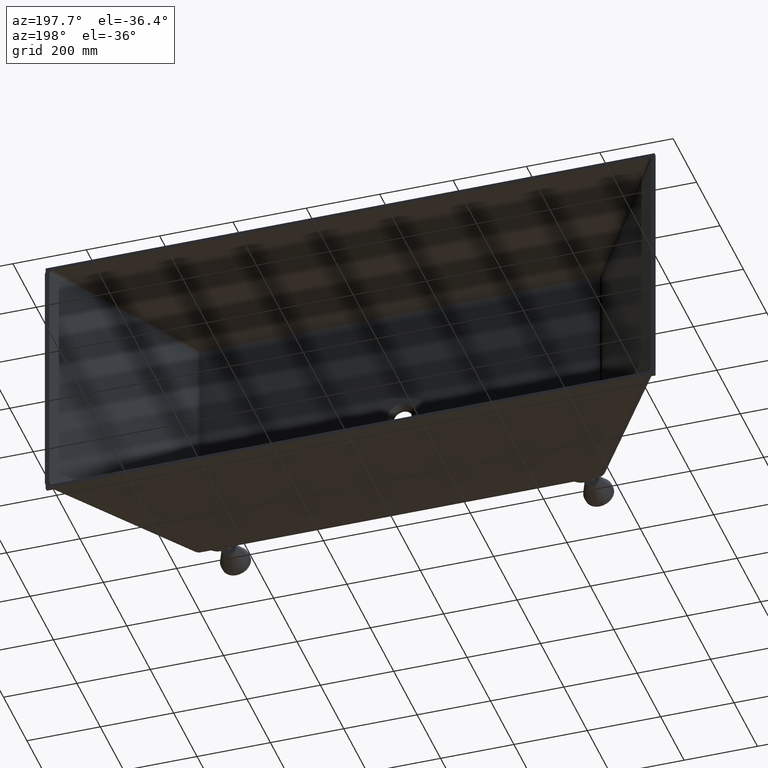
[diagram: clean part render]
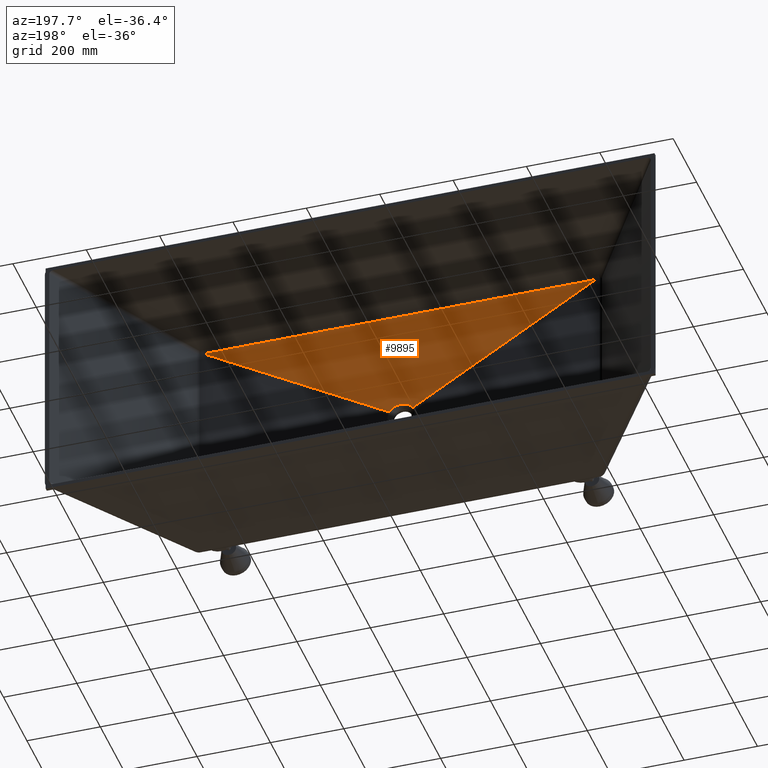
[diagram: same view with one face highlighted and labeled with its STEP entity id]
A machine part, auxiliary view. The second image highlights one B-rep face of the part: STEP entity #9895.
In plain terms, the highlighted face is a freeform B-spline surface patch.
Its self-contained STEP definition (entity closure, byte-faithful):
#6 = CARTESIAN_POINT ( 'NONE',  ( -550.0000000000000000, -423.0000000000000000, 320.0000000000000000 ) ) ;
#35 = CARTESIAN_POINT ( 'NONE',  ( -21.53126045213230100, -435.0000000000001700, 14.69394547517998700 ) ) ;
#63 = CARTESIAN_POINT ( 'NONE',  ( -504.1666666666668600, -423.0000000000000000, 320.0000000000000000 ) ) ;
#97 = CARTESIAN_POINT ( 'NONE',  ( -20.35324425944732600, -435.0000000000002300, 16.31443209533704300 ) ) ;
#150 = CARTESIAN_POINT ( 'NONE',  ( -458.3333333333336000, -423.0000000000000000, 320.0000000000000000 ) ) ;
#219 = CARTESIAN_POINT ( 'NONE',  ( -18.19023653724159900, -435.0000000000000600, 18.60696392049823800 ) ) ;
#253 = CARTESIAN_POINT ( 'NONE',  ( -389.5833333333336000, -423.0000000000000000, 319.9999999999999400 ) ) ;
#282 = VERTEX_POINT ( 'NONE', #10109 ) ;
#288 = CARTESIAN_POINT ( 'NONE',  ( -17.40376523756670600, -434.9999999999999400, 19.34752461996535900 ) ) ;
#291 = B_SPLINE_CURVE_WITH_KNOTS ( 'NONE', 3,
 ( #9550, #9423, #8990, #8873, #8839, #8793, #8758, #8723, #8652, #8612, #8572, #8141, #8099, #8026, #7989, #7954, #7915, #7821, #7330, #7296, #7219, #7151, #7045, #7020, #6992, #6508, #6429, #6357, #6270, #6239, #6204, #6140, #5635, #5600, #5565, #5503, #5472, #5436, #5377, #5312, #4809, #4747, #4711, #4621, #4540, #4509, #4145, #4072, #4035, #4002, #3914, #3879, #3845, #3811, #3776, #3743, #3358, #3320, #3286, #3253, #3192, #3160, #3130, #3069, #3003, #2975 ),
 .UNSPECIFIED., .F., .F.,
 ( 4, 2, 2, 2, 2, 2, 2, 2, 2, 2, 2, 2, 2, 2, 2, 2, 2, 2, 2, 2, 2, 2, 2, 2, 2, 2, 2, 2, 2, 2, 2, 2, 4 ),
 ( 0.0000000000000000000, 0.0007649081231403058000, 0.01798026586033315800, 0.03519562359752601000, 0.05241098133471885900, 0.08684169680910455700, 0.1212724122834902700, 0.1557031277578759800, 0.1901338432322616800, 0.2245645587066473800, 0.2589952741810330700, 0.2934259896554187700, 0.3278567051298044700, 0.3450720628669973200, 0.3622874206041901700, 0.3967181360785758700, 0.4311488515529616200, 0.5000102825017329600, 0.5688717134505043600, 0.6377331443992758600, 0.6549485021364687100, 0.6721638598736615600, 0.7065945753480472600, 0.7410252908224329600, 0.7754560062968186600, 0.8098867217712043500, 0.8443174372455900500, 0.8787481527199757500, 0.9131788681943614500, 0.9476095836687471500, 0.9820402991431328400, 0.9992556568803256900, 1.000000000000000000 ),
 .UNSPECIFIED. ) ;
#324 = CARTESIAN_POINT ( 'NONE',  ( -366.6666666666669100, -422.9999999999999400, 319.9999999999999400 ) ) ;
#355 = CARTESIAN_POINT ( 'NONE',  ( -15.70179363176896300, -435.0000000000000600, 20.75262465592824800 ) ) ;
#466 = CARTESIAN_POINT ( 'NONE',  ( -320.8333333333336600, -422.9999999999999400, 319.9999999999999400 ) ) ;
#493 = B_SPLINE_SURFACE_WITH_KNOTS ( 'NONE', 3, 1, ( 
 ( #3213, #3527 ),
 ( #3149, #3118 ),
 ( #3090, #3058 ),
 ( #3027, #2990 ),
 ( #2930, #2899 ),
 ( #2763, #2629 ),
 ( #2596, #2561 ),
 ( #2526, #2481 ),
 ( #2451, #2429 ),
 ( #2387, #2194 ),
 ( #2160, #2053 ),
 ( #1993, #1855 ),
 ( #1815, #1783 ),
 ( #1756, #1741 ),
 ( #1673, #1612 ),
 ( #1500, #1476 ),
 ( #1409, #1317 ),
 ( #1195, #1117 ),
 ( #1080, #1045 ),
 ( #1010, #1001 ),
 ( #943, #909 ),
 ( #867, #804 ),
 ( #681, #644 ),
 ( #607, #496 ),
 ( #466, #355 ),
 ( #324, #288 ),
 ( #253, #219 ),
 ( #150, #97 ),
 ( #63, #35 ),
 ( #6, #3332 ) ),
 .UNSPECIFIED., .F., .F., .F.,
 ( 4, 2, 2, 2, 2, 2, 2, 2, 2, 2, 2, 2, 2, 2, 4 ),
 ( 2, 2 ),
 ( 0.0000000000000000000, 0.1250000000000000600, 0.1875000000000000800, 0.2500000000000001100, 0.3125000000000001100, 0.3750000000000001700, 0.4375000000000001100, 0.5000000000000000000, 0.5625000000000000000, 0.6250000000000000000, 0.6875000000000001100, 0.7500000000000001100, 0.8125000000000001100, 0.8750000000000001100, 1.000000000000000000 ),
 ( 0.0000000000000000000, 1.000000000000000000 ),
 .UNSPECIFIED. ) ;
#496 = CARTESIAN_POINT ( 'NONE',  ( -14.78624980635664700, -435.0000000000000600, 21.41708314686528400 ) ) ;
#596 = CARTESIAN_POINT ( 'NONE',  ( 534.0089786336966400, -423.3620320843216400, 310.7403656354988500 ) ) ;
#607 = CARTESIAN_POINT ( 'NONE',  ( -297.9166666666669100, -422.9999999999999400, 319.9999999999999400 ) ) ;
#644 = CARTESIAN_POINT ( 'NONE',  ( -12.83600753977993000, -435.0000000000000600, 22.63982209060918600 ) ) ;
#681 = CARTESIAN_POINT ( 'NONE',  ( -252.0833333333336600, -422.9999999999999400, 319.9999999999999400 ) ) ;
#804 = CARTESIAN_POINT ( 'NONE',  ( -11.80129827629861000, -435.0000000000000000, 23.19799905050772900 ) ) ;
#847 = EDGE_CURVE ( 'NONE', #1510, #7518, #5214, .T. ) ;
#858 = VECTOR ( 'NONE', #6430, 1000.000000000000000 ) ;
#867 = CARTESIAN_POINT ( 'NONE',  ( -229.1666666666670000, -422.9999999999999400, 319.9999999999999400 ) ) ;
#909 = CARTESIAN_POINT ( 'NONE',  ( -9.631562217398775200, -435.0000000000000000, 24.17955355679468700 ) ) ;
#943 = CARTESIAN_POINT ( 'NONE',  ( -183.3333333333336300, -422.9999999999999400, 319.9999999999999400 ) ) ;
#1001 = CARTESIAN_POINT ( 'NONE',  ( -8.496569480746329000, -435.0000000000000600, 24.60282113457703800 ) ) ;
#1010 = CARTESIAN_POINT ( 'NONE',  ( -160.4166666666669400, -422.9999999999999400, 319.9999999999999400 ) ) ;
#1012 = ORIENTED_EDGE ( 'NONE', *, *, #7434, .F. ) ;
#1045 = CARTESIAN_POINT ( 'NONE',  ( -6.153758291839070100, -435.0000000000000000, 25.29074454433403900 ) ) ;
#1080 = CARTESIAN_POINT ( 'NONE',  ( -114.5833333333335700, -422.9999999999999400, 319.9999999999999400 ) ) ;
#1117 = CARTESIAN_POINT ( 'NONE',  ( -4.946021307307768600, -434.9999999999998900, 25.55530689251893500 ) ) ;
#1130 = CARTESIAN_POINT ( 'NONE',  ( 533.7607856264130500, -423.3694040181032400, 310.5517298190039800 ) ) ;
#1174 = CARTESIAN_POINT ( 'NONE',  ( -31.67528869381416700, -434.7906821366494800, 18.42822079933189300 ) ) ;
#1195 = CARTESIAN_POINT ( 'NONE',  ( -91.66666666666689900, -422.9999999999999400, 319.9999999999999400 ) ) ;
#1317 = CARTESIAN_POINT ( 'NONE',  ( -2.492132842348292200, -435.0000000000000000, 25.90996161786537800 ) ) ;
#1348 = CARTESIAN_POINT ( 'NONE',  ( 533.7607856264130500, -423.3694040181032400, 310.5517298190039800 ) ) ;
#1409 = CARTESIAN_POINT ( 'NONE',  ( -45.83333333333357000, -422.9999999999998900, 319.9999999999999400 ) ) ;
#1476 = CARTESIAN_POINT ( 'NONE',  ( -1.246099363747027900, -435.0000000000000000, 25.99999999999999600 ) ) ;
#1500 = CARTESIAN_POINT ( 'NONE',  ( -22.91666666666690900, -422.9999999999998900, 319.9999999999999400 ) ) ;
#1510 = VERTEX_POINT ( 'NONE', #1348 ) ;
#1540 = CARTESIAN_POINT ( 'NONE',  ( 534.0824365687542500, -423.3576370261505400, 310.8529072462811200 ) ) ;
#1591 = VERTEX_POINT ( 'NONE', #1174 ) ;
#1612 = CARTESIAN_POINT ( 'NONE',  ( 1.246099363747022600, -435.0000000000000000, 26.00000000000000000 ) ) ;
#1625 = VERTEX_POINT ( 'NONE', #3565 ) ;
#1673 = CARTESIAN_POINT ( 'NONE',  ( 22.91666666666638400, -422.9999999999998900, 319.9999999999999400 ) ) ;
#1687 = CARTESIAN_POINT ( 'NONE',  ( 534.0965935054943000, -423.3541531858632000, 310.9421604996377400 ) ) ;
#1737 = CARTESIAN_POINT ( 'NONE',  ( -533.7607856264130500, -423.3694040181032400, 310.5517298190039200 ) ) ;
#1741 = CARTESIAN_POINT ( 'NONE',  ( 2.492132842348286900, -435.0000000000000600, 25.90996161786537800 ) ) ;
#1756 = CARTESIAN_POINT ( 'NONE',  ( 45.83333333333301600, -422.9999999999999400, 319.9999999999999400 ) ) ;
#1770 = CARTESIAN_POINT ( 'NONE',  ( -533.8382887829374100, -423.3676410031726500, 310.5968225645631300 ) ) ;
#1783 = CARTESIAN_POINT ( 'NONE',  ( 4.946021307307760600, -435.0000000000000000, 25.55530689251893500 ) ) ;
#1815 = CARTESIAN_POINT ( 'NONE',  ( 91.66666666666630200, -422.9999999999999400, 319.9999999999999400 ) ) ;
#1855 = CARTESIAN_POINT ( 'NONE',  ( 6.153758291839063900, -435.0000000000001100, 25.29074454433402900 ) ) ;
#1993 = CARTESIAN_POINT ( 'NONE',  ( 114.5833333333329600, -422.9999999999999400, 319.9999999999999400 ) ) ;
#2022 = CARTESIAN_POINT ( 'NONE',  ( 533.9134175418050700, -423.3656696787636500, 310.6472563725386600 ) ) ;
#2053 = CARTESIAN_POINT ( 'NONE',  ( 8.496569480746323700, -435.0000000000000000, 24.60282113457703100 ) ) ;
#2160 = CARTESIAN_POINT ( 'NONE',  ( 160.4166666666662900, -422.9999999999999400, 319.9999999999999400 ) ) ;
#2187 = CARTESIAN_POINT ( 'NONE',  ( 534.0966441834889300, -423.3559228654215800, 310.8968155842244400 ) ) ;
#2194 = CARTESIAN_POINT ( 'NONE',  ( 9.631562217398768100, -435.0000000000001100, 24.17955355679468400 ) ) ;
#2195 = CARTESIAN_POINT ( 'NONE',  ( 534.0965935054943000, -423.3541531858632000, 310.9421604996377400 ) ) ;
#2354 = CARTESIAN_POINT ( 'NONE',  ( -533.9133252174507300, -423.3656731287621800, 310.6471680668528800 ) ) ;
#2384 = CARTESIAN_POINT ( 'NONE',  ( -534.0090152650642500, -423.3620307221139000, 310.7404005021878700 ) ) ;
#2387 = CARTESIAN_POINT ( 'NONE',  ( 183.3333333333329700, -422.9999999999999400, 319.9999999999999400 ) ) ;
#2414 = CARTESIAN_POINT ( 'NONE',  ( -534.0385009323456400, -423.3606718627521000, 310.7751890281936700 ) ) ;
#2429 = CARTESIAN_POINT ( 'NONE',  ( 11.80129827629860300, -434.9999999999999400, 23.19799905050772900 ) ) ;
#2447 = CARTESIAN_POINT ( 'NONE',  ( -534.0824123019687000, -423.3576367315096700, 310.8529148209063400 ) ) ;
#2451 = CARTESIAN_POINT ( 'NONE',  ( 229.1666666666663400, -422.9999999999999400, 319.9999999999999400 ) ) ;
#2481 = CARTESIAN_POINT ( 'NONE',  ( 12.83600753977991900, -435.0000000000000000, 22.63982209060919000 ) ) ;
#2508 = CARTESIAN_POINT ( 'NONE',  ( -534.0965935054996400, -423.3541531858631400, 310.9421604996377900 ) ) ;
#2526 = CARTESIAN_POINT ( 'NONE',  ( 252.0833333333330600, -423.0000000000000000, 319.9999999999999400 ) ) ;
#2561 = CARTESIAN_POINT ( 'NONE',  ( 14.78624980635664300, -435.0000000000000600, 21.41708314686527700 ) ) ;
#2596 = CARTESIAN_POINT ( 'NONE',  ( 297.9166666666664000, -423.0000000000000000, 319.9999999999999400 ) ) ;
#2629 = CARTESIAN_POINT ( 'NONE',  ( 15.70179363176895900, -435.0000000000001100, 20.75262465592825100 ) ) ;
#2763 = CARTESIAN_POINT ( 'NONE',  ( 320.8333333333331400, -423.0000000000000000, 319.9999999999999400 ) ) ;
#2899 = CARTESIAN_POINT ( 'NONE',  ( 17.40376523756670900, -435.0000000000001100, 19.34752461996537000 ) ) ;
#2930 = CARTESIAN_POINT ( 'NONE',  ( 366.6666666666664600, -422.9999999999999400, 319.9999999999999400 ) ) ;
#2975 = CARTESIAN_POINT ( 'NONE',  ( 31.67485388664897900, -434.7906765696487800, 18.42900590408427400 ) ) ;
#2990 = CARTESIAN_POINT ( 'NONE',  ( 18.19023653724159600, -435.0000000000000000, 18.60696392049824500 ) ) ;
#3003 = CARTESIAN_POINT ( 'NONE',  ( 31.66513763791430200, -434.7905684489561500, 18.44537365015929000 ) ) ;
#3027 = CARTESIAN_POINT ( 'NONE',  ( 389.5833333333331400, -422.9999999999999400, 319.9999999999999400 ) ) ;
#3058 = CARTESIAN_POINT ( 'NONE',  ( 20.35324425944731900, -435.0000000000001100, 16.31443209533704700 ) ) ;
#3069 = CARTESIAN_POINT ( 'NONE',  ( 31.65544393481685500, -434.7904555263431200, 18.46175240032306400 ) ) ;
#3090 = CARTESIAN_POINT ( 'NONE',  ( 458.3333333333332600, -422.9999999999999400, 320.0000000000000000 ) ) ;
#3118 = CARTESIAN_POINT ( 'NONE',  ( 21.53126045213229000, -435.0000000000002300, 14.69394547517999100 ) ) ;
#3130 = CARTESIAN_POINT ( 'NONE',  ( 31.42126800297704400, -434.7877337861762000, 18.85671318384526900 ) ) ;
#3149 = CARTESIAN_POINT ( 'NONE',  ( 504.1666666666666300, -422.9999999999999400, 320.0000000000000000 ) ) ;
#3160 = CARTESIAN_POINT ( 'NONE',  ( 31.18971447916894800, -434.7850703093896500, 19.23159980236039600 ) ) ;
#3192 = CARTESIAN_POINT ( 'NONE',  ( 30.47402320430857300, -434.7768944875264200, 20.34446544322554500 ) ) ;
#3213 = CARTESIAN_POINT ( 'NONE',  ( 550.0000000000000000, -423.0000000000000000, 320.0000000000000000 ) ) ;
#3253 = CARTESIAN_POINT ( 'NONE',  ( 29.97338501347079600, -434.7713121402571200, 21.06384375863076700 ) ) ;
#3286 = CARTESIAN_POINT ( 'NONE',  ( 28.92497763894195700, -434.7597892332445300, 22.46093483414037100 ) ) ;
#3320 = CARTESIAN_POINT ( 'NONE',  ( 28.37744996466367200, -434.7538648504896100, 23.13828524448156200 ) ) ;
#3332 = CARTESIAN_POINT ( 'NONE',  ( -22.47305678044381200, -435.0000000000000000, 13.07523303589456500 ) ) ;
#3358 = CARTESIAN_POINT ( 'NONE',  ( 27.23630538129395300, -434.7417167940291700, 24.45123446539314900 ) ) ;
#3527 = CARTESIAN_POINT ( 'NONE',  ( 22.47305678044380900, -435.0000000000000000, 13.07523303589456800 ) ) ;
#3530 = ORIENTED_EDGE ( 'NONE', *, *, #4110, .F. ) ;
#3560 = EDGE_LOOP ( 'NONE', ( #3530, #5721, #7370, #1012, #6896, #8819 ) ) ;
#3565 = CARTESIAN_POINT ( 'NONE',  ( -534.0965935054996400, -423.3541531858631400, 310.9421604996377900 ) ) ;
#3743 = CARTESIAN_POINT ( 'NONE',  ( 26.64270761563857100, -434.7354932362129000, 25.08680817947536600 ) ) ;
#3776 = CARTESIAN_POINT ( 'NONE',  ( 25.40927507780442300, -434.7227906635948200, 26.31617562609921300 ) ) ;
#3811 = CARTESIAN_POINT ( 'NONE',  ( 24.76895352422763000, -434.7163079224632200, 26.91031838149753200 ) ) ;
#3845 = CARTESIAN_POINT ( 'NONE',  ( 23.44318931368229300, -434.7031748507452000, 28.05472889748158100 ) ) ;
#3879 = CARTESIAN_POINT ( 'NONE',  ( 22.75286986984199100, -434.6964797111009500, 28.60848720315624400 ) ) ;
#3914 = CARTESIAN_POINT ( 'NONE',  ( 21.34431616751143700, -434.6832038170692800, 29.65707446587583000 ) ) ;
#3998 = DIRECTION ( 'NONE',  ( -0.8641813118520227400, -0.01965809685271037400, -0.5027963996229950500 ) ) ;
#4002 = CARTESIAN_POINT ( 'NONE',  ( 20.62474845370035200, -434.6766070425616100, 30.15357854645837300 ) ) ;
#4035 = CARTESIAN_POINT ( 'NONE',  ( 19.15559829435723000, -434.6636176080353900, 31.09211745435894900 ) ) ;
#4072 = CARTESIAN_POINT ( 'NONE',  ( 18.40601577085023500, -434.6572275434494400, 31.53420193161941000 ) ) ;
#4098 = CARTESIAN_POINT ( 'NONE',  ( 286.2365283902219100, -429.0000000000000000, 166.5376165179473000 ) ) ;
#4110 = EDGE_CURVE ( 'NONE', #7518, #1625, #9846, .T. ) ;
#4145 = CARTESIAN_POINT ( 'NONE',  ( 16.87700671171148100, -434.6447982019687400, 32.36447482298388700 ) ) ;
#4509 = CARTESIAN_POINT ( 'NONE',  ( 16.09760452160449200, -434.6387571012452300, 32.75265032530491300 ) ) ;
#4532 = B_SPLINE_CURVE_WITH_KNOTS ( 'NONE', 3,
 ( #2508, #4697, #2447, #2414, #2384, #2354, #1770, #1737 ),
 .UNSPECIFIED., .F., .F.,
 ( 4, 2, 2, 4 ),
 ( 5.551115123125782100E-017, 0.0001340846341011557500, 0.0002681692682022559900, 0.0005363385364043399200 ),
 .UNSPECIFIED. ) ;
#4540 = CARTESIAN_POINT ( 'NONE',  ( 14.50854541564934600, -434.6271746850344500, 33.47479420970189800 ) ) ;
#4607 = CARTESIAN_POINT ( 'NONE',  ( -534.0965935054996400, -423.3541531858631400, 310.9421604996377900 ) ) ;
#4621 = CARTESIAN_POINT ( 'NONE',  ( 13.69899093461672700, -434.6216375594840400, 33.80868805681232900 ) ) ;
#4634 = CARTESIAN_POINT ( 'NONE',  ( -356.0643957822634300, -423.3612998052275900, 310.9501310011507400 ) ) ;
#4697 = CARTESIAN_POINT ( 'NONE',  ( -534.0966442286718300, -423.3559244439720100, 310.8967751366412200 ) ) ;
#4711 = CARTESIAN_POINT ( 'NONE',  ( 12.46119368259505600, -434.6138319889535600, 34.26806348511588100 ) ) ;
#4747 = CARTESIAN_POINT ( 'NONE',  ( 12.04395989785261600, -434.6113100263989400, 34.41444768614782400 ) ) ;
#4809 = CARTESIAN_POINT ( 'NONE',  ( 11.20733184638134000, -434.6064857819140500, 34.69124588033150800 ) ) ;
#4890 = LINE ( 'NONE', #6630, #858 ) ;
#5214 = B_SPLINE_CURVE_WITH_KNOTS ( 'NONE', 3,
 ( #1130, #7057, #2022, #596, #10065, #1540, #2187, #2195 ),
 .UNSPECIFIED., .F., .F.,
 ( 4, 2, 2, 4 ),
 ( 0.0000000000000000000, 0.0002683631198409549000, 0.0004025446797614960700, 0.0005367262396820373000 ),
 .UNSPECIFIED. ) ;
#5297 = CARTESIAN_POINT ( 'NONE',  ( -1.659685722188442000E-007, -423.3767337258359500, 310.9680474877814000 ) ) ;
#5312 = CARTESIAN_POINT ( 'NONE',  ( 10.78765090886797000, -434.6041804893484400, 34.82186335493104700 ) ) ;
#5361 = CARTESIAN_POINT ( 'NONE',  ( 534.0965935054943000, -423.3541531858632000, 310.9421604996377400 ) ) ;
#5377 = CARTESIAN_POINT ( 'NONE',  ( 8.682760508893757400, -434.5932338262031200, 35.43567839087749100 ) ) ;
#5436 = CARTESIAN_POINT ( 'NONE',  ( 6.977580235617979000, -434.5863332028261000, 35.80398224478670200 ) ) ;
#5472 = CARTESIAN_POINT ( 'NONE',  ( 3.525884178364810900, -434.5769469013945400, 36.29851160580721400 ) ) ;
#5503 = CARTESIAN_POINT ( 'NONE',  ( 1.779157402845542600, -434.5744780559304000, 36.42501543554710300 ) ) ;
#5565 = CARTESIAN_POINT ( 'NONE',  ( -1.757619351734037500, -434.5744581745696600, 36.42604526279867400 ) ) ;
#5600 = CARTESIAN_POINT ( 'NONE',  ( -3.506638107220919800, -434.5769081935057400, 36.30053357939370100 ) ) ;
#5635 = CARTESIAN_POINT ( 'NONE',  ( -6.101232379346930300, -434.5839434116733200, 35.92990066270612500 ) ) ;
#5721 = ORIENTED_EDGE ( 'NONE', *, *, #847, .F. ) ;
#5739 = EDGE_CURVE ( 'NONE', #1625, #6253, #4532, .T. ) ;
#6066 = FACE_OUTER_BOUND ( 'NONE', #3560, .T. ) ;
#6140 = CARTESIAN_POINT ( 'NONE',  ( -6.961317690273150800, -434.5868407469714600, 35.77584795457956800 ) ) ;
#6204 = CARTESIAN_POINT ( 'NONE',  ( -8.671961217934281800, -434.5936685346454700, 35.40636297598093300 ) ) ;
#6239 = CARTESIAN_POINT ( 'NONE',  ( -9.522337521668687200, -434.5975990630571500, 35.19096088770159300 ) ) ;
#6253 = VERTEX_POINT ( 'NONE', #7028 ) ;
#6270 = CARTESIAN_POINT ( 'NONE',  ( -10.79103741957749400, -434.6041986312442300, 34.82081812419067300 ) ) ;
#6357 = CARTESIAN_POINT ( 'NONE',  ( -11.21333720682403100, -434.6065191758268000, 34.68934796101951400 ) ) ;
#6429 = CARTESIAN_POINT ( 'NONE',  ( -12.04964828057499700, -434.6113440795882100, 34.41247548092104600 ) ) ;
#6430 = DIRECTION ( 'NONE',  ( -0.8641813118520227400, 0.01965809685271037400, 0.5027963996229950500 ) ) ;
#6438 = VECTOR ( 'NONE', #3998, 1000.000000000000100 ) ;
#6508 = CARTESIAN_POINT ( 'NONE',  ( -12.46438655719232700, -434.6138519340586900, 34.26689456993359800 ) ) ;
#6630 = CARTESIAN_POINT ( 'NONE',  ( -286.2365283902219600, -429.0000000000000000, 166.5376165179473000 ) ) ;
#6896 = ORIENTED_EDGE ( 'NONE', *, *, #9703, .T. ) ;
#6992 = CARTESIAN_POINT ( 'NONE',  ( -13.69664186024080600, -434.6216231242233900, 33.80952784427732600 ) ) ;
#7020 = CARTESIAN_POINT ( 'NONE',  ( -14.50432319432618800, -434.6271456165703700, 33.47655326352735700 ) ) ;
#7028 = CARTESIAN_POINT ( 'NONE',  ( -533.7607856264130500, -423.3694040181032400, 310.5517298190039200 ) ) ;
#7032 = CARTESIAN_POINT ( 'NONE',  ( 356.0643957934679500, -423.3612998052266800, 310.9501310011502800 ) ) ;
#7045 = CARTESIAN_POINT ( 'NONE',  ( -16.09064746644813200, -434.6387047018587900, 32.75597053735460000 ) ) ;
#7057 = CARTESIAN_POINT ( 'NONE',  ( 533.8382491541651700, -423.3676419046323100, 310.5967995078779000 ) ) ;
#7151 = CARTESIAN_POINT ( 'NONE',  ( -16.86958792933088000, -434.6447397324445800, 32.36828591560154000 ) ) ;
#7219 = CARTESIAN_POINT ( 'NONE',  ( -18.39928847567637100, -434.6571710319865400, 31.53807035143154600 ) ) ;
#7296 = CARTESIAN_POINT ( 'NONE',  ( -19.15002705929899900, -434.6635691489228200, 31.09555237574541300 ) ) ;
#7330 = CARTESIAN_POINT ( 'NONE',  ( -20.62292687436780300, -434.6765901450460800, 30.15486575868894900 ) ) ;
#7370 = ORIENTED_EDGE ( 'NONE', *, *, #8784, .T. ) ;
#7434 = EDGE_CURVE ( 'NONE', #1591, #282, #291, .T. ) ;
#7518 = VERTEX_POINT ( 'NONE', #1687 ) ;
#7821 = CARTESIAN_POINT ( 'NONE',  ( -21.34522534177512700, -434.6832114028534300, 29.65660453748301300 ) ) ;
#7915 = CARTESIAN_POINT ( 'NONE',  ( -22.75999147684208900, -434.6965478244948100, 28.60297717240201700 ) ) ;
#7954 = CARTESIAN_POINT ( 'NONE',  ( -23.44377014557068500, -434.7031810573747100, 28.05410957685844800 ) ) ;
#7989 = CARTESIAN_POINT ( 'NONE',  ( -24.76617605916374000, -434.7162799571328800, 26.91283354103637700 ) ) ;
#8026 = CARTESIAN_POINT ( 'NONE',  ( -25.40469621506439100, -434.7227441361434900, 26.32049296937234900 ) ) ;
#8099 = CARTESIAN_POINT ( 'NONE',  ( -26.63694483426710500, -434.7354332663288700, 25.09279633668949200 ) ) ;
#8141 = CARTESIAN_POINT ( 'NONE',  ( -27.23066335759582300, -434.7416572953691200, 24.45744998493940900 ) ) ;
#8572 = CARTESIAN_POINT ( 'NONE',  ( -28.37318323895128500, -434.7538188692713000, 23.14346789258787900 ) ) ;
#8612 = CARTESIAN_POINT ( 'NONE',  ( -28.92217185093441100, -434.7597586263073600, 22.46453527438496100 ) ) ;
#8651 = LINE ( 'NONE', #4098, #6438 ) ;
#8652 = CARTESIAN_POINT ( 'NONE',  ( -29.71069256766977100, -434.7684248069203400, 21.41397263864983500 ) ) ;
#8723 = CARTESIAN_POINT ( 'NONE',  ( -29.96799156473314300, -434.7712765438610100, 21.05794953310092800 ) ) ;
#8758 = CARTESIAN_POINT ( 'NONE',  ( -30.47080911398433400, -434.7768985582662300, 20.33493825237009700 ) ) ;
#8784 = EDGE_CURVE ( 'NONE', #1510, #282, #8651, .T. ) ;
#8793 = CARTESIAN_POINT ( 'NONE',  ( -30.71654322697523700, -434.7796715040121300, 19.96750925473394400 ) ) ;
#8819 = ORIENTED_EDGE ( 'NONE', *, *, #5739, .F. ) ;
#8839 = CARTESIAN_POINT ( 'NONE',  ( -31.19203236278769600, -434.7850900617976300, 19.22784280456144000 ) ) ;
#8873 = CARTESIAN_POINT ( 'NONE',  ( -31.42229541387004600, -434.7877456911061800, 18.85498436714051000 ) ) ;
#8990 = CARTESIAN_POINT ( 'NONE',  ( -31.65590350174102200, -434.7904608741559400, 18.46097711804241800 ) ) ;
#9423 = CARTESIAN_POINT ( 'NONE',  ( -31.66582924081778200, -434.7905765079689200, 18.44420539503448700 ) ) ;
#9550 = CARTESIAN_POINT ( 'NONE',  ( -31.67528869381416700, -434.7906821366494800, 18.42822079933189300 ) ) ;
#9703 = EDGE_CURVE ( 'NONE', #1591, #6253, #4890, .T. ) ;
#9846 = B_SPLINE_CURVE_WITH_KNOTS ( 'NONE', 3,
 ( #5361, #7032, #5297, #4634, #4607 ),
 .UNSPECIFIED., .F., .F.,
 ( 4, 1, 4 ),
 ( 0.0003352190608810800100, 0.5344318131625353000, 1.068528407264189600 ),
 .UNSPECIFIED. ) ;
#9895 = ADVANCED_FACE ( 'NONE', ( #6066 ), #493, .F. ) ;
#10065 = CARTESIAN_POINT ( 'NONE',  ( 534.0382887632965800, -423.3606845474014900, 310.7748642200734800 ) ) ;
#10109 = CARTESIAN_POINT ( 'NONE',  ( 31.67485388664897900, -434.7906765696487800, 18.42900590408427400 ) ) ;